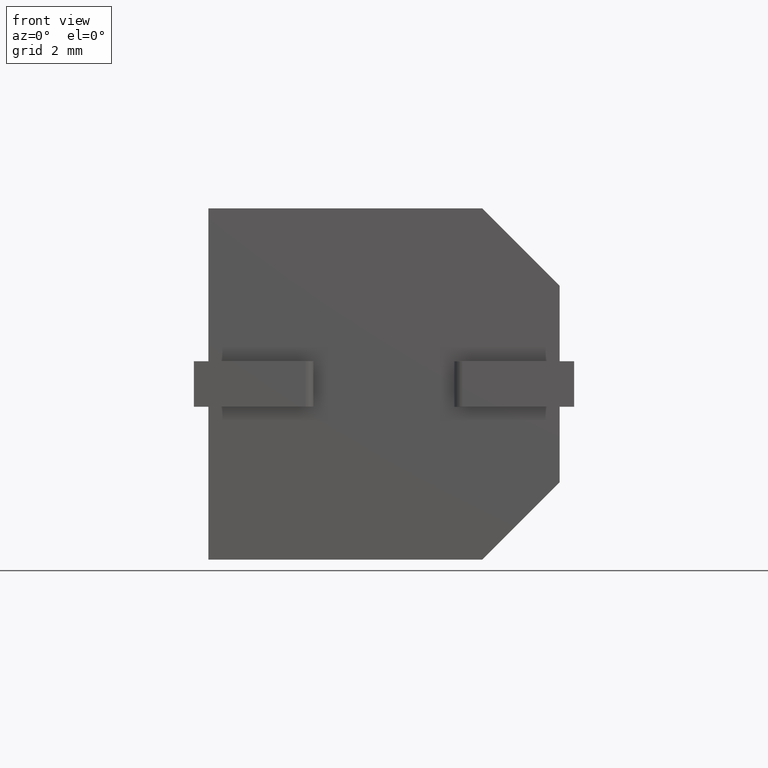
[diagram: clean part render]
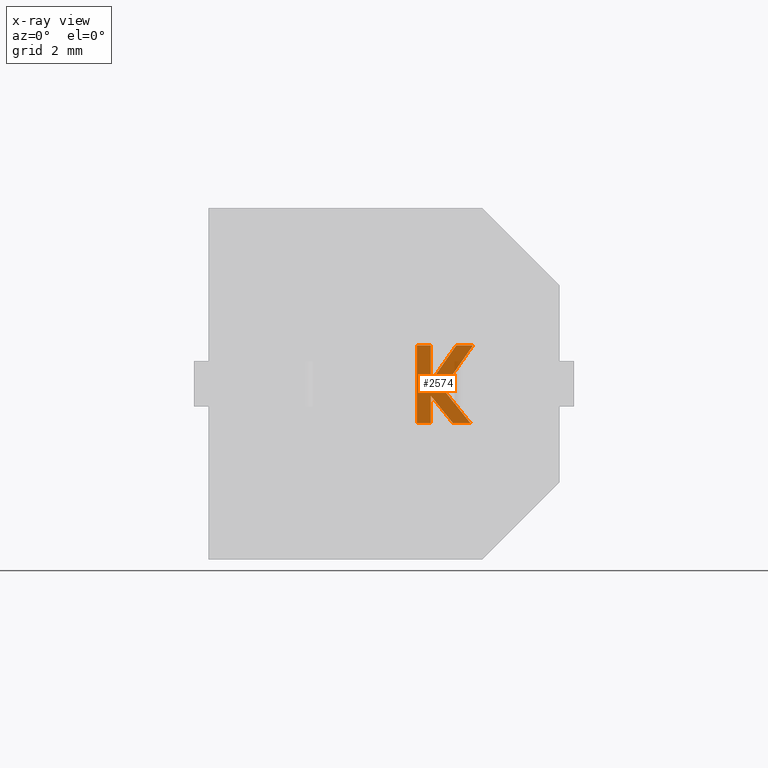
[diagram: x-ray — body ghosted, one internal face saturated and labeled with its STEP entity id]
A machine part, front view, then the same camera in x-ray: the body is ghosted and one INTERNAL B-rep face — a face not visible from any outside direction — is saturated and labeled: STEP entity #2574.
In plain terms, the highlighted planar face has unit normal (0, -1, 0).
Its self-contained STEP definition (entity closure, byte-faithful):
#63 = VERTEX_POINT ( 'NONE', #1055 ) ;
#66 = EDGE_CURVE ( 'NONE', #63, #1904, #3400, .T. ) ;
#84 = VECTOR ( 'NONE', #251, 1000.000000000000000 ) ;
#86 = ORIENTED_EDGE ( 'NONE', *, *, #2112, .F. ) ;
#131 = DIRECTION ( 'NONE',  ( 0.000000000000000000, 0.000000000000000000, -1.000000000000000000 ) ) ;
#171 = VERTEX_POINT ( 'NONE', #648 ) ;
#173 = CARTESIAN_POINT ( 'NONE',  ( 6.337724959187636564, 12.30000000000000249, -5.194358624149853831 ) ) ;
#215 = ORIENTED_EDGE ( 'NONE', *, *, #3044, .F. ) ;
#251 = DIRECTION ( 'NONE',  ( 0.5740093059051177837, 0.000000000000000000, 0.8188487752536025566 ) ) ;
#282 = DIRECTION ( 'NONE',  ( -0.5740940732108399391, 0.000000000000000000, -0.8187893472097611536 ) ) ;
#431 = LINE ( 'NONE', #3109, #967 ) ;
#507 = EDGE_CURVE ( 'NONE', #2921, #1282, #2248, .T. ) ;
#528 = ORIENTED_EDGE ( 'NONE', *, *, #2936, .F. ) ;
#557 = VECTOR ( 'NONE', #1822, 1000.000000000000114 ) ;
#574 = CARTESIAN_POINT ( 'NONE',  ( 5.669532934686574599, 12.30000000000000249, -4.365036138344194683 ) ) ;
#623 = VECTOR ( 'NONE', #131, 1000.000000000000000 ) ;
#648 = CARTESIAN_POINT ( 'NONE',  ( 5.381079547306396371, 12.30000000000000249, -3.319363575886128181 ) ) ;
#657 = LINE ( 'NONE', #1440, #2221 ) ;
#658 = VERTEX_POINT ( 'NONE', #3136 ) ;
#683 = ORIENTED_EDGE ( 'NONE', *, *, #1435, .F. ) ;
#696 = VERTEX_POINT ( 'NONE', #2683 ) ;
#737 = ORIENTED_EDGE ( 'NONE', *, *, #1024, .F. ) ;
#826 = VERTEX_POINT ( 'NONE', #2924 ) ;
#832 = LINE ( 'NONE', #574, #2219 ) ;
#913 = LINE ( 'NONE', #2987, #1247 ) ;
#920 = VERTEX_POINT ( 'NONE', #1914 ) ;
#938 = LINE ( 'NONE', #2803, #2727 ) ;
#958 = VECTOR ( 'NONE', #1394, 1000.000000000000000 ) ;
#967 = VECTOR ( 'NONE', #2025, 1000.000000000000000 ) ;
#976 = AXIS2_PLACEMENT_3D ( 'NONE', #3302, #3358, #2233 ) ;
#1024 = EDGE_CURVE ( 'NONE', #171, #658, #1127, .T. ) ;
#1027 = CARTESIAN_POINT ( 'NONE',  ( 5.381079547306393707, 12.30000000000000249, -4.535198855793510120 ) ) ;
#1032 = ORIENTED_EDGE ( 'NONE', *, *, #507, .F. ) ;
#1055 = CARTESIAN_POINT ( 'NONE',  ( 5.912919214105404109, 12.30000000000000249, -5.194358624149853831 ) ) ;
#1127 = LINE ( 'NONE', #2738, #623 ) ;
#1171 = DIRECTION ( 'NONE',  ( -1.000000000000000000, 0.000000000000000000, 0.000000000000000000 ) ) ;
#1236 = FACE_OUTER_BOUND ( 'NONE', #3027, .T. ) ;
#1241 = ORIENTED_EDGE ( 'NONE', *, *, #3308, .F. ) ;
#1247 = VECTOR ( 'NONE', #2720, 1000.000000000000000 ) ;
#1257 = CARTESIAN_POINT ( 'NONE',  ( 5.381079547306393707, 12.30000000000000249, -5.194358658074004431 ) ) ;
#1258 = CARTESIAN_POINT ( 'NONE',  ( 5.669532934686574599, 12.30000000000000249, -4.365036138344194683 ) ) ;
#1282 = VERTEX_POINT ( 'NONE', #2357 ) ;
#1334 = LINE ( 'NONE', #2352, #84 ) ;
#1394 = DIRECTION ( 'NONE',  ( 0.6274016762861017726, 0.000000000000000000, -0.7786957920737659355 ) ) ;
#1435 = EDGE_CURVE ( 'NONE', #3278, #920, #1928, .T. ) ;
#1440 = CARTESIAN_POINT ( 'NONE',  ( 5.912919214105404109, 12.30000000000000249, -5.194358624149853831 ) ) ;
#1447 = CARTESIAN_POINT ( 'NONE',  ( 5.044508229166684288, 12.30000000000000249, -5.194358658074004431 ) ) ;
#1473 = DIRECTION ( 'NONE',  ( 0.000000000000000000, 0.000000000000000000, 1.000000000000000000 ) ) ;
#1698 = ORIENTED_EDGE ( 'NONE', *, *, #66, .F. ) ;
#1822 = DIRECTION ( 'NONE',  ( -0.6279378741829139132, 0.000000000000000000, 0.7782634683490179395 ) ) ;
#1904 = VERTEX_POINT ( 'NONE', #2854 ) ;
#1914 = CARTESIAN_POINT ( 'NONE',  ( 6.337724959187636564, 12.30000000000000249, -5.194358624149853831 ) ) ;
#1928 = LINE ( 'NONE', #173, #958 ) ;
#1949 = PLANE ( 'NONE',  #976 ) ;
#1967 = DIRECTION ( 'NONE',  ( 0.000000000000000000, 0.000000000000000000, -1.000000000000000000 ) ) ;
#2025 = DIRECTION ( 'NONE',  ( 1.000000000000000000, 0.000000000000000000, 0.000000000000000000 ) ) ;
#2112 = EDGE_CURVE ( 'NONE', #826, #696, #431, .T. ) ;
#2219 = VECTOR ( 'NONE', #282, 1000.000000000000000 ) ;
#2221 = VECTOR ( 'NONE', #1171, 1000.000000000000000 ) ;
#2233 = DIRECTION ( 'NONE',  ( 0.000000000000000000, 0.000000000000000000, -1.000000000000000000 ) ) ;
#2248 = LINE ( 'NONE', #3098, #2926 ) ;
#2352 = CARTESIAN_POINT ( 'NONE',  ( 5.997442092279873016, 12.30000000000000249, -3.319363575886130846 ) ) ;
#2357 = CARTESIAN_POINT ( 'NONE',  ( 5.044508229166684288, 12.30000000000000249, -3.319363575886128181 ) ) ;
#2440 = VERTEX_POINT ( 'NONE', #1257 ) ;
#2497 = DIRECTION ( 'NONE',  ( -1.000000000000000000, 0.000000000000000000, 0.000000000000000000 ) ) ;
#2522 = ORIENTED_EDGE ( 'NONE', *, *, #2579, .F. ) ;
#2574 = ADVANCED_FACE ( 'NONE', ( #1236 ), #1949, .T. ) ;
#2579 = EDGE_CURVE ( 'NONE', #1904, #2440, #938, .T. ) ;
#2683 = CARTESIAN_POINT ( 'NONE',  ( 6.402706152770193171, 12.30000000000000249, -3.319363575886130846 ) ) ;
#2720 = DIRECTION ( 'NONE',  ( 1.000000000000000000, 0.000000000000000000, 0.000000000000000000 ) ) ;
#2727 = VECTOR ( 'NONE', #1967, 1000.000000000000000 ) ;
#2738 = CARTESIAN_POINT ( 'NONE',  ( 5.381079547306396371, 12.30000000000000249, -4.198631054429680987 ) ) ;
#2803 = CARTESIAN_POINT ( 'NONE',  ( 5.381079547306393707, 12.30000000000000249, -5.194358658074004431 ) ) ;
#2854 = CARTESIAN_POINT ( 'NONE',  ( 5.381079547306393707, 12.30000000000000249, -4.535198855793510120 ) ) ;
#2856 = EDGE_CURVE ( 'NONE', #2440, #2921, #3026, .T. ) ;
#2903 = VECTOR ( 'NONE', #2497, 1000.000000000000000 ) ;
#2921 = VERTEX_POINT ( 'NONE', #2928 ) ;
#2924 = CARTESIAN_POINT ( 'NONE',  ( 5.997442092279873016, 12.30000000000000249, -3.319363575886130846 ) ) ;
#2926 = VECTOR ( 'NONE', #1473, 1000.000000000000000 ) ;
#2928 = CARTESIAN_POINT ( 'NONE',  ( 5.044508229166684288, 12.30000000000000249, -5.194358658074004431 ) ) ;
#2936 = EDGE_CURVE ( 'NONE', #696, #3278, #832, .T. ) ;
#2987 = CARTESIAN_POINT ( 'NONE',  ( 5.381079547306396371, 12.30000000000000249, -3.319363575886128181 ) ) ;
#3026 = LINE ( 'NONE', #1447, #2903 ) ;
#3027 = EDGE_LOOP ( 'NONE', ( #1032, #3249, #2522, #1698, #215, #683, #528, #86, #3373, #737, #1241 ) ) ;
#3044 = EDGE_CURVE ( 'NONE', #920, #63, #657, .T. ) ;
#3098 = CARTESIAN_POINT ( 'NONE',  ( 5.044508229166684288, 12.30000000000000249, -3.319363575886128181 ) ) ;
#3109 = CARTESIAN_POINT ( 'NONE',  ( 6.402706152770193171, 12.30000000000000249, -3.319363575886130846 ) ) ;
#3136 = CARTESIAN_POINT ( 'NONE',  ( 5.381079547306396371, 12.30000000000000249, -4.198631054429680987 ) ) ;
#3249 = ORIENTED_EDGE ( 'NONE', *, *, #2856, .F. ) ;
#3278 = VERTEX_POINT ( 'NONE', #1258 ) ;
#3302 = CARTESIAN_POINT ( 'NONE',  ( 0.4853262552323130419, 12.30000000000000249, -0.02186394466922349233 ) ) ;
#3308 = EDGE_CURVE ( 'NONE', #1282, #171, #913, .T. ) ;
#3358 = DIRECTION ( 'NONE',  ( 0.000000000000000000, -1.000000000000000000, 0.000000000000000000 ) ) ;
#3373 = ORIENTED_EDGE ( 'NONE', *, *, #3374, .F. ) ;
#3374 = EDGE_CURVE ( 'NONE', #658, #826, #1334, .T. ) ;
#3400 = LINE ( 'NONE', #1027, #557 ) ;